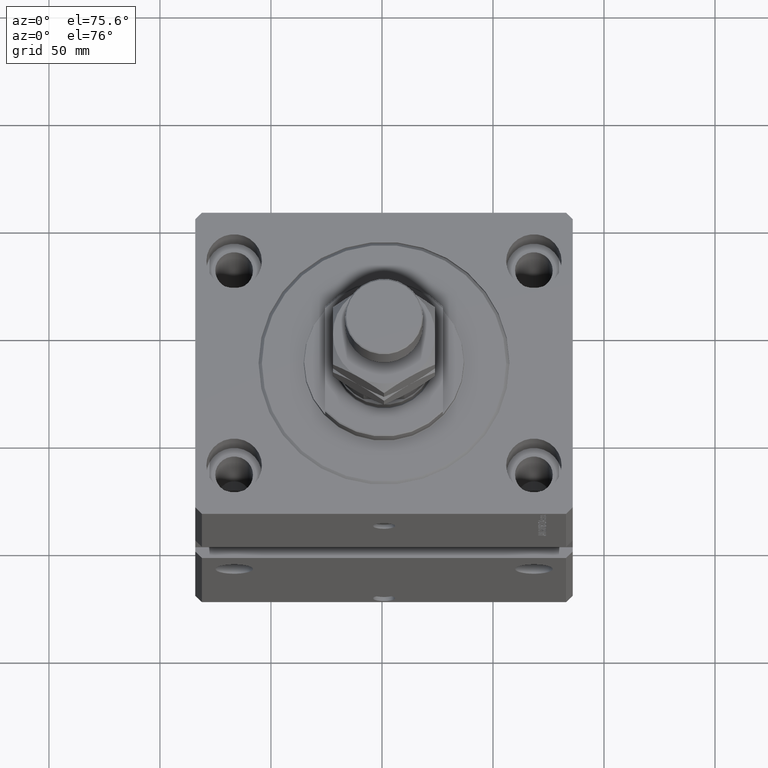
[diagram: clean part render]
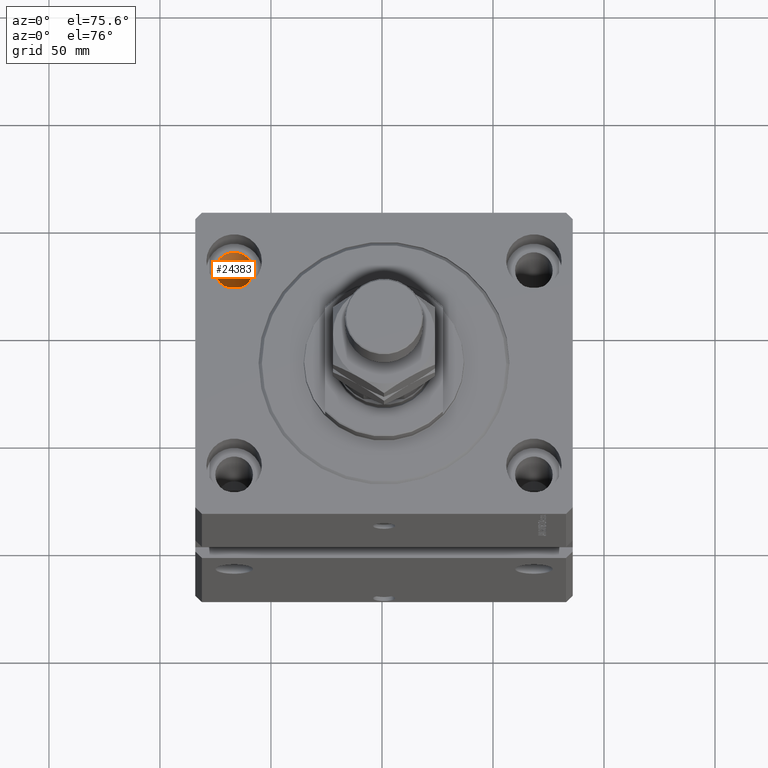
[diagram: same view with one face highlighted and labeled with its STEP entity id]
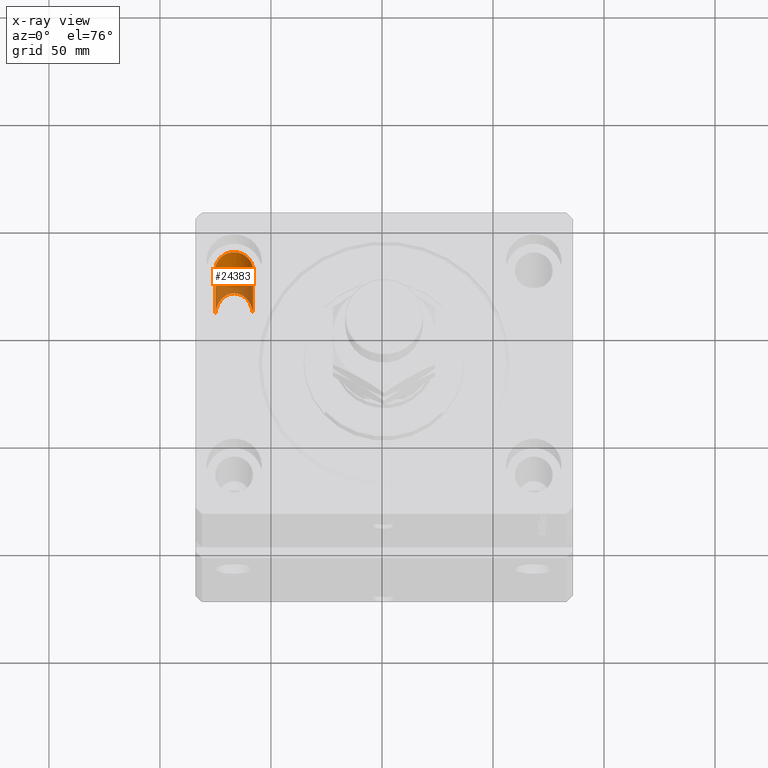
[diagram: x-ray of the same camera — body ghosted, the highlighted face saturated]
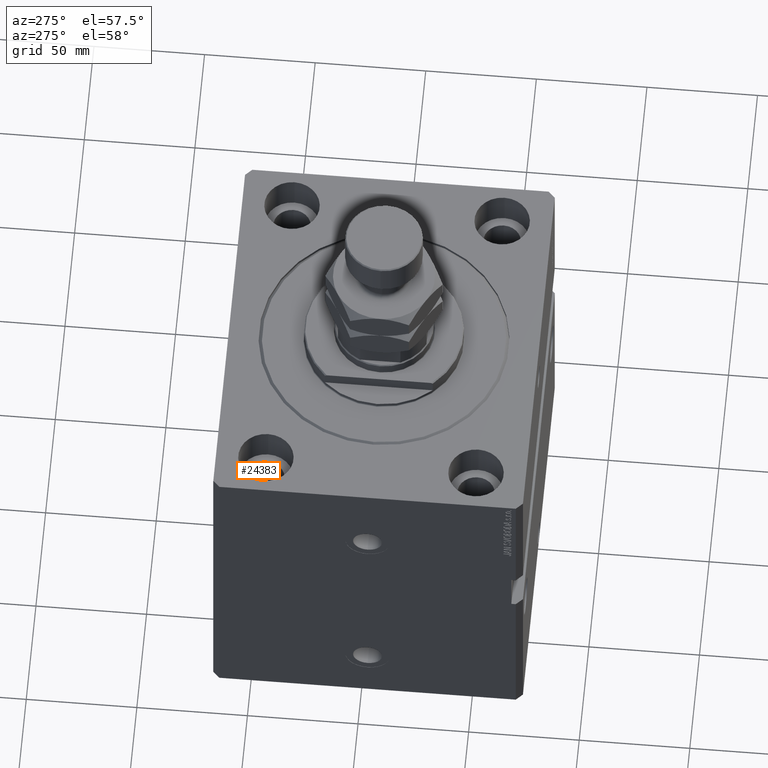
[diagram: same view with one face highlighted and labeled with its STEP entity id]
A machine part, auxiliary view. The second image highlights one B-rep face of the part: STEP entity #24383.
The next image is the same camera in x-ray: the body ghosted, the highlighted face saturated — about 31% of this face is hidden behind the body in this view.
A second angle (auxiliary view) of the same face is appended — the face is thin or edge-on in the first view.
In plain terms, the highlighted cylindrical surface (edge-blend (fillet) strip) has radius 8.5 mm, axis along (0, 0, 1).
Its self-contained STEP definition (entity closure, byte-faithful):
#700 = ORIENTED_EDGE ( 'NONE', *, *, #29532, .T. ) ;
#1100 = FACE_OUTER_BOUND ( 'NONE', #12716, .T. ) ;
#1338 = CARTESIAN_POINT ( 'NONE',  ( -67.50000000000000000, 47.50000000000000000, -160.0000000000000284 ) ) ;
#1390 = CARTESIAN_POINT ( 'NONE',  ( -76.00000000000001421, 64.49999999999998579, -83.00000000000001421 ) ) ;
#1587 = DIRECTION ( 'NONE',  ( 1.000000000000000000, 0.000000000000000000, 0.000000000000000000 ) ) ;
#1896 = CIRCLE ( 'NONE', #27381, 8.499999999999992895 ) ;
#3330 = VERTEX_POINT ( 'NONE', #5617 ) ;
#4171 = DIRECTION ( 'NONE',  ( -0.000000000000000000, -0.000000000000000000, 1.000000000000000000 ) ) ;
#4575 = VERTEX_POINT ( 'NONE', #33971 ) ;
#5617 = CARTESIAN_POINT ( 'NONE',  ( -59.00000000000001421, 47.50000000000000000, -17.00000000000000000 ) ) ;
#6151 = ORIENTED_EDGE ( 'NONE', *, *, #31429, .T. ) ;
#7227 =( BOUNDED_CURVE ( )  B_SPLINE_CURVE ( 3, ( #12323, #1390, #8195, #15947 ),
 .UNSPECIFIED., .F., .T. ) 
 B_SPLINE_CURVE_WITH_KNOTS ( ( 4, 4 ),
 ( 4.712388980384689674, 7.853981633974482790 ),
 .UNSPECIFIED. ) 
 CURVE ( )  GEOMETRIC_REPRESENTATION_ITEM ( )  RATIONAL_B_SPLINE_CURVE ( ( 1.000000000000000000, 0.3333333333333333703, 0.3333333333333333703, 1.000000000000000000 ) ) 
 REPRESENTATION_ITEM ( '' )  );
#8195 = CARTESIAN_POINT ( 'NONE',  ( -59.00000000000002132, 64.49999999999998579, -83.00000000000001421 ) ) ;
#8385 = CYLINDRICAL_SURFACE ( 'NONE', #13475, 8.499999999999992895 ) ;
#9755 = EDGE_CURVE ( 'NONE', #10029, #25701, #9885, .T. ) ;
#9768 = CARTESIAN_POINT ( 'NONE',  ( -76.00000000000001421, 47.50000000000000000, -100.0000000000000000 ) ) ;
#9885 = LINE ( 'NONE', #35099, #13045 ) ;
#10029 = VERTEX_POINT ( 'NONE', #9768 ) ;
#11429 = ORIENTED_EDGE ( 'NONE', *, *, #9755, .F. ) ;
#12323 = CARTESIAN_POINT ( 'NONE',  ( -76.00000000000001421, 47.50000000000000000, -100.0000000000000000 ) ) ;
#12716 = EDGE_LOOP ( 'NONE', ( #11429, #30069, #6151, #700 ) ) ;
#13045 = VECTOR ( 'NONE', #46271, 1000.000000000000000 ) ;
#13475 = AXIS2_PLACEMENT_3D ( 'NONE', #1338, #19543, #1587 ) ;
#15765 = VECTOR ( 'NONE', #4171, 1000.000000000000000 ) ;
#15947 = CARTESIAN_POINT ( 'NONE',  ( -59.00000000000002132, 47.50000000000000000, -100.0000000000000000 ) ) ;
#18592 = CARTESIAN_POINT ( 'NONE',  ( -76.00000000000000000, 47.50000000000000000, -17.00000000000000000 ) ) ;
#18734 = LINE ( 'NONE', #29893, #15765 ) ;
#19543 = DIRECTION ( 'NONE',  ( -0.000000000000000000, -0.000000000000000000, 1.000000000000000000 ) ) ;
#20108 = DIRECTION ( 'NONE',  ( 1.000000000000000000, 0.000000000000000000, 0.000000000000000000 ) ) ;
#24383 = ADVANCED_FACE ( 'NONE', ( #1100 ), #8385, .F. ) ;
#25701 = VERTEX_POINT ( 'NONE', #18592 ) ;
#27381 = AXIS2_PLACEMENT_3D ( 'NONE', #47019, #28583, #20108 ) ;
#28583 = DIRECTION ( 'NONE',  ( 0.000000000000000000, 0.000000000000000000, 1.000000000000000000 ) ) ;
#29532 = EDGE_CURVE ( 'NONE', #3330, #25701, #1896, .T. ) ;
#29893 = CARTESIAN_POINT ( 'NONE',  ( -59.00000000000001421, 47.50000000000000000, -160.0000000000000284 ) ) ;
#30069 = ORIENTED_EDGE ( 'NONE', *, *, #42266, .T. ) ;
#31429 = EDGE_CURVE ( 'NONE', #4575, #3330, #18734, .T. ) ;
#33971 = CARTESIAN_POINT ( 'NONE',  ( -59.00000000000002132, 47.50000000000000000, -100.0000000000000000 ) ) ;
#35099 = CARTESIAN_POINT ( 'NONE',  ( -76.00000000000000000, 47.50000000000000000, -160.0000000000000284 ) ) ;
#42266 = EDGE_CURVE ( 'NONE', #10029, #4575, #7227, .T. ) ;
#46271 = DIRECTION ( 'NONE',  ( -0.000000000000000000, -0.000000000000000000, 1.000000000000000000 ) ) ;
#47019 = CARTESIAN_POINT ( 'NONE',  ( -67.50000000000000000, 47.50000000000000000, -17.00000000000000000 ) ) ;